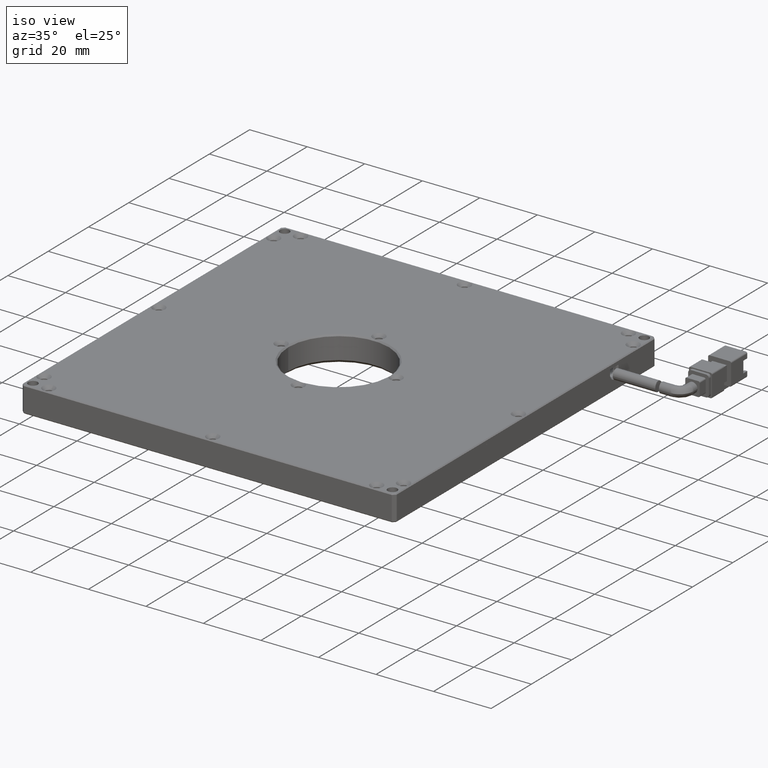
[diagram: clean part render]
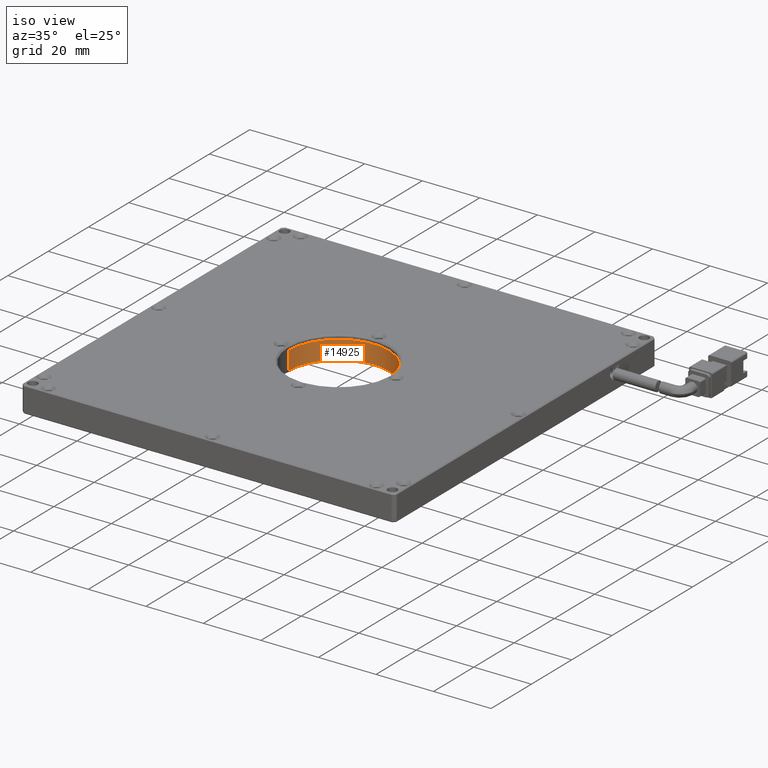
[diagram: same view with one face highlighted and labeled with its STEP entity id]
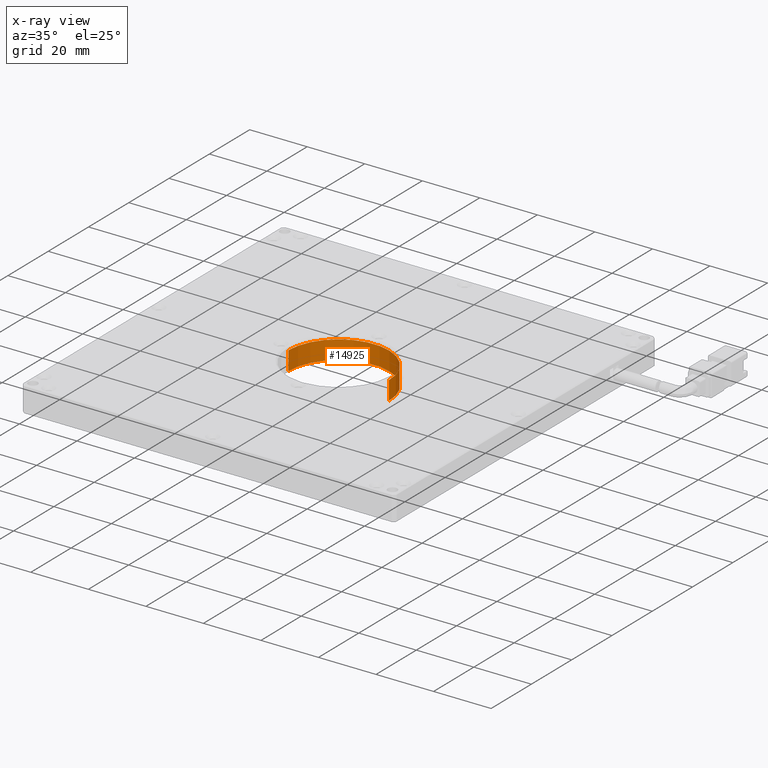
[diagram: x-ray of the same camera — body ghosted, the highlighted face saturated]
A machine part, iso view. The second image highlights one B-rep face of the part: STEP entity #14925.
The next image is the same camera in x-ray: the body ghosted, the highlighted face saturated — about 0% of this face is hidden behind the body in this view.
In plain terms, the highlighted cylindrical surface (partial cylindrical patch) has radius 17.5 mm, axis along (0, 0, -1).
Its self-contained STEP definition (entity closure, byte-faithful):
#60 = EDGE_CURVE ( 'NONE', #7178, #4362, #879, .T. ) ;
#334 = VECTOR ( 'NONE', #11196, 1000.000000000000000 ) ;
#358 = EDGE_CURVE ( 'NONE', #753, #2251, #1117, .T. ) ;
#753 = VERTEX_POINT ( 'NONE', #18114 ) ;
#879 = CIRCLE ( 'NONE', #3325, 17.50000000000000400 ) ;
#1117 = CIRCLE ( 'NONE', #1778, 17.50000000000000400 ) ;
#1778 = AXIS2_PLACEMENT_3D ( 'NONE', #6481, #14481, #11086 ) ;
#1891 = CYLINDRICAL_SURFACE ( 'NONE', #10005, 17.50000000000000400 ) ;
#2055 = LINE ( 'NONE', #3429, #334 ) ;
#2186 = ORIENTED_EDGE ( 'NONE', *, *, #2834, .F. ) ;
#2251 = VERTEX_POINT ( 'NONE', #11556 ) ;
#2266 = CARTESIAN_POINT ( 'NONE',  ( 26.12907407407412200, 24.05944444444444500, -1.999999999999994900 ) ) ;
#2834 = EDGE_CURVE ( 'NONE', #2251, #4362, #2055, .T. ) ;
#3325 = AXIS2_PLACEMENT_3D ( 'NONE', #2266, #13376, #14923 ) ;
#3429 = CARTESIAN_POINT ( 'NONE',  ( 43.62907407407412600, 24.05944444444444800, -61.53117956449462900 ) ) ;
#4362 = VERTEX_POINT ( 'NONE', #15522 ) ;
#5145 = CARTESIAN_POINT ( 'NONE',  ( 8.629074074074115000, 24.05944444444444100, -61.53117956449462900 ) ) ;
#5211 = LINE ( 'NONE', #5145, #14526 ) ;
#6481 = CARTESIAN_POINT ( 'NONE',  ( 26.12907407407412200, 24.05944444444444500, 4.499999999999997300 ) ) ;
#6645 = DIRECTION ( 'NONE',  ( -1.000000000000000000, -1.982541115402064900E-016, 0.0000000000000000000 ) ) ;
#7178 = VERTEX_POINT ( 'NONE', #16034 ) ;
#8065 = CARTESIAN_POINT ( 'NONE',  ( 26.12907407407412200, 24.05944444444444500, -61.53117956449462900 ) ) ;
#9642 = DIRECTION ( 'NONE',  ( 0.0000000000000000000, 0.0000000000000000000, -1.000000000000000000 ) ) ;
#10005 = AXIS2_PLACEMENT_3D ( 'NONE', #8065, #9642, #6645 ) ;
#10236 = FACE_OUTER_BOUND ( 'NONE', #15225, .T. ) ;
#11086 = DIRECTION ( 'NONE',  ( -1.000000000000000000, -1.982541115402064900E-016, 0.0000000000000000000 ) ) ;
#11196 = DIRECTION ( 'NONE',  ( 0.0000000000000000000, 0.0000000000000000000, -1.000000000000000000 ) ) ;
#11556 = CARTESIAN_POINT ( 'NONE',  ( 43.62907407407412600, 24.05944444444444800, 4.499999999999997300 ) ) ;
#12585 = EDGE_CURVE ( 'NONE', #753, #7178, #5211, .T. ) ;
#13376 = DIRECTION ( 'NONE',  ( 0.0000000000000000000, 0.0000000000000000000, -1.000000000000000000 ) ) ;
#14481 = DIRECTION ( 'NONE',  ( 0.0000000000000000000, 0.0000000000000000000, -1.000000000000000000 ) ) ;
#14526 = VECTOR ( 'NONE', #15943, 1000.000000000000000 ) ;
#14923 = DIRECTION ( 'NONE',  ( -1.000000000000000000, -1.982541115402064900E-016, 0.0000000000000000000 ) ) ;
#14925 = ADVANCED_FACE ( 'NONE', ( #10236 ), #1891, .F. ) ;
#15225 = EDGE_LOOP ( 'NONE', ( #2186, #17495, #16790, #18257 ) ) ;
#15522 = CARTESIAN_POINT ( 'NONE',  ( 43.62907407407412600, 24.05944444444444800, -1.999999999999994900 ) ) ;
#15943 = DIRECTION ( 'NONE',  ( 0.0000000000000000000, 0.0000000000000000000, -1.000000000000000000 ) ) ;
#16034 = CARTESIAN_POINT ( 'NONE',  ( 8.629074074074115000, 24.05944444444444100, -1.999999999999994900 ) ) ;
#16790 = ORIENTED_EDGE ( 'NONE', *, *, #12585, .T. ) ;
#17495 = ORIENTED_EDGE ( 'NONE', *, *, #358, .F. ) ;
#18114 = CARTESIAN_POINT ( 'NONE',  ( 8.629074074074115000, 24.05944444444444100, 4.499999999999997300 ) ) ;
#18257 = ORIENTED_EDGE ( 'NONE', *, *, #60, .T. ) ;